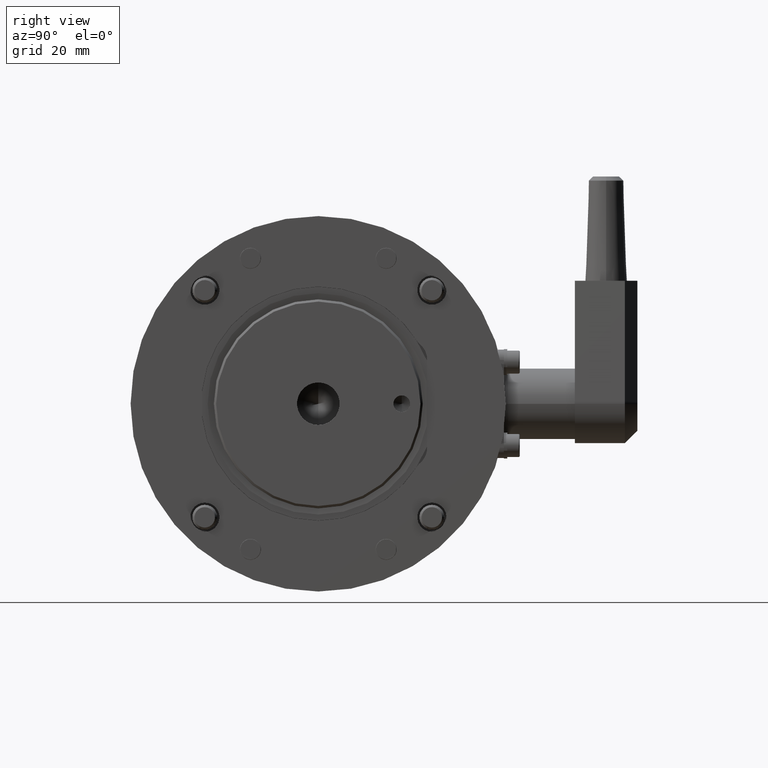
[diagram: clean part render]
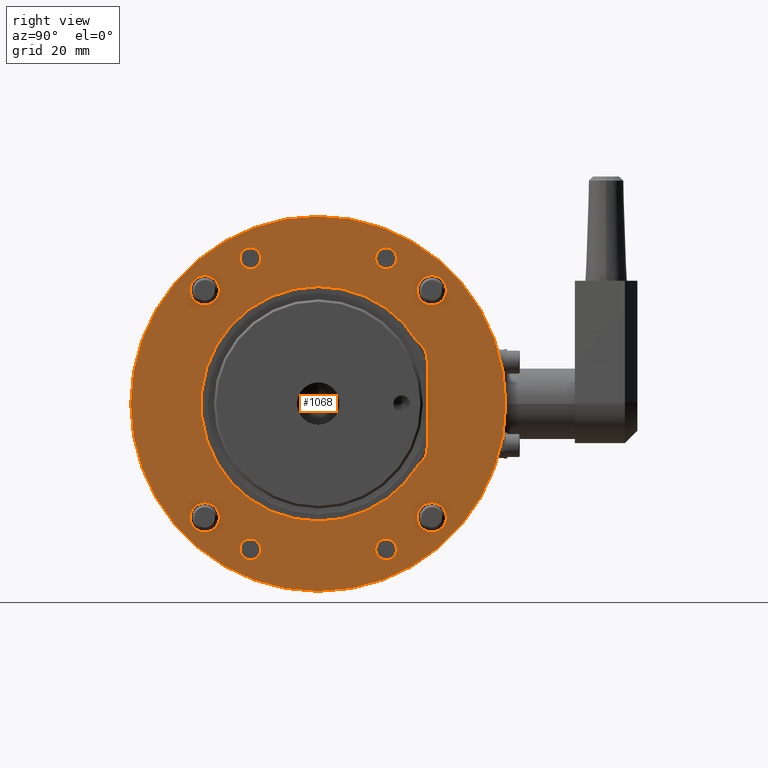
[diagram: same view with one face highlighted and labeled with its STEP entity id]
A machine part, right view. The second image highlights one B-rep face of the part: STEP entity #1068.
In plain terms, the highlighted planar face has unit normal (-1, 0, 0).
Its self-contained STEP definition (entity closure, byte-faithful):
#45 = DIRECTION ( 'NONE',  ( -0.000000000000000000, 1.000000000000000000, -0.000000000000000000 ) ) ;
#64 = FACE_BOUND ( 'NONE', #1565, .T. ) ;
#106 = EDGE_CURVE ( 'NONE', #11818, #146, #1406, .T. ) ;
#143 = CARTESIAN_POINT ( 'NONE',  ( -27.22361107568211480, 0.000000000000000000, 30.72361107568203664 ) ) ;
#146 = VERTEX_POINT ( 'NONE', #13581 ) ;
#271 = ORIENTED_EDGE ( 'NONE', *, *, #2846, .T. ) ;
#278 = VERTEX_POINT ( 'NONE', #4343 ) ;
#367 = CIRCLE ( 'NONE', #13309, 28.10000000000000497 ) ;
#409 = FACE_BOUND ( 'NONE', #9617, .T. ) ;
#425 = CARTESIAN_POINT ( 'NONE',  ( -16.27080307701695716, -5.204170427930421283E-15, 37.39284980091099442 ) ) ;
#624 = DIRECTION ( 'NONE',  ( -0.000000000000000000, -0.000000000000000000, -1.000000000000000000 ) ) ;
#702 = EDGE_CURVE ( 'NONE', #3669, #1093, #1564, .T. ) ;
#731 = FACE_BOUND ( 'NONE', #3517, .T. ) ;
#735 = DIRECTION ( 'NONE',  ( 0.000000000000000000, 0.000000000000000000, 1.000000000000000000 ) ) ;
#841 = CIRCLE ( 'NONE', #11515, 28.10000000000000497 ) ;
#954 = EDGE_CURVE ( 'NONE', #6074, #11250, #11849, .T. ) ;
#996 = DIRECTION ( 'NONE',  ( 0.000000000000000000, 0.000000000000000000, 1.000000000000000000 ) ) ;
#1007 = CARTESIAN_POINT ( 'NONE',  ( 16.27080307701697492, -5.204170427930421283E-15, 34.89284980091100152 ) ) ;
#1068 = ADVANCED_FACE ( 'NONE', ( #9550, #11689, #6072, #731, #409, #5737, #2866, #64, #10354, #12016 ), #2482, .F. ) ;
#1093 = VERTEX_POINT ( 'NONE', #10910 ) ;
#1118 = EDGE_CURVE ( 'NONE', #1093, #3669, #6057, .T. ) ;
#1131 = DIRECTION ( 'NONE',  ( 0.000000000000000000, 0.000000000000000000, 1.000000000000000000 ) ) ;
#1157 = EDGE_LOOP ( 'NONE', ( #9105, #271, #10041, #6002, #8500, #9265 ) ) ;
#1217 = EDGE_CURVE ( 'NONE', #6344, #6433, #13024, .T. ) ;
#1248 = DIRECTION ( 'NONE',  ( 0.000000000000000000, 0.000000000000000000, 1.000000000000000000 ) ) ;
#1272 = AXIS2_PLACEMENT_3D ( 'NONE', #7073, #4871, #13369 ) ;
#1295 = CARTESIAN_POINT ( 'NONE',  ( -27.22361107568204375, 0.000000000000000000, -27.22361107568211125 ) ) ;
#1406 = CIRCLE ( 'NONE', #10963, 2.499999999999988454 ) ;
#1436 = ORIENTED_EDGE ( 'NONE', *, *, #11705, .T. ) ;
#1469 = ORIENTED_EDGE ( 'NONE', *, *, #8684, .T. ) ;
#1503 = CARTESIAN_POINT ( 'NONE',  ( -16.27080307701696427, -5.204170427930421283E-15, -37.39284980091098731 ) ) ;
#1564 = CIRCLE ( 'NONE', #3754, 3.499999999999999556 ) ;
#1565 = EDGE_LOOP ( 'NONE', ( #7275, #5899 ) ) ;
#1669 = AXIS2_PLACEMENT_3D ( 'NONE', #3922, #13497, #2973 ) ;
#1720 = DIRECTION ( 'NONE',  ( 0.000000000000000000, 1.000000000000000000, 0.000000000000000000 ) ) ;
#1733 = DIRECTION ( 'NONE',  ( 0.000000000000000000, 0.000000000000000000, 1.000000000000000000 ) ) ;
#1760 = ORIENTED_EDGE ( 'NONE', *, *, #9654, .T. ) ;
#1777 = CARTESIAN_POINT ( 'NONE',  ( 26.10000000000000497, 0.000000000000000000, -10.50000000000000000 ) ) ;
#1788 = AXIS2_PLACEMENT_3D ( 'NONE', #3568, #7886, #6713 ) ;
#1791 = VERTEX_POINT ( 'NONE', #1796 ) ;
#1796 = CARTESIAN_POINT ( 'NONE',  ( 24.04563333253369706, 0.000000000000000000, 14.54020349367039344 ) ) ;
#1844 = AXIS2_PLACEMENT_3D ( 'NONE', #6094, #6050, #735 ) ;
#1909 = CARTESIAN_POINT ( 'NONE',  ( -16.27080307701696427, -5.204170427930421283E-15, -32.39284980091101573 ) ) ;
#1981 = DIRECTION ( 'NONE',  ( 0.000000000000000000, 0.000000000000000000, 1.000000000000000000 ) ) ;
#1995 = AXIS2_PLACEMENT_3D ( 'NONE', #2694, #1720, #2644 ) ;
#2420 = DIRECTION ( 'NONE',  ( 0.000000000000000000, 0.000000000000000000, 1.000000000000000000 ) ) ;
#2482 = PLANE ( 'NONE',  #1788 ) ;
#2535 = CARTESIAN_POINT ( 'NONE',  ( -27.22361107568204375, 0.000000000000000000, -27.22361107568211125 ) ) ;
#2543 = EDGE_CURVE ( 'NONE', #278, #9111, #367, .T. ) ;
#2644 = DIRECTION ( 'NONE',  ( 0.000000000000000000, 0.000000000000000000, 1.000000000000000000 ) ) ;
#2674 = CARTESIAN_POINT ( 'NONE',  ( 16.27080307701696427, -5.204170427930421283E-15, -32.39284980091102284 ) ) ;
#2694 = CARTESIAN_POINT ( 'NONE',  ( 0.000000000000000000, 0.000000000000000000, 0.000000000000000000 ) ) ;
#2802 = EDGE_CURVE ( 'NONE', #6433, #6344, #8497, .T. ) ;
#2810 = ORIENTED_EDGE ( 'NONE', *, *, #3048, .F. ) ;
#2846 = EDGE_CURVE ( 'NONE', #11930, #278, #841, .T. ) ;
#2866 = FACE_BOUND ( 'NONE', #3269, .T. ) ;
#2886 = ORIENTED_EDGE ( 'NONE', *, *, #2802, .T. ) ;
#2973 = DIRECTION ( 'NONE',  ( 0.000000000000000000, 0.000000000000000000, 1.000000000000000000 ) ) ;
#3020 = AXIS2_PLACEMENT_3D ( 'NONE', #1007, #13732, #11575 ) ;
#3048 = EDGE_CURVE ( 'NONE', #12156, #9846, #6019, .T. ) ;
#3150 = AXIS2_PLACEMENT_3D ( 'NONE', #5023, #12568, #1981 ) ;
#3230 = CARTESIAN_POINT ( 'NONE',  ( 26.10000000000000497, 0.000000000000000000, 10.50000000000000000 ) ) ;
#3247 = CARTESIAN_POINT ( 'NONE',  ( 27.22361107568212191, 0.000000000000000000, -27.22361107568203309 ) ) ;
#3269 = EDGE_LOOP ( 'NONE', ( #7442, #7791 ) ) ;
#3317 = DIRECTION ( 'NONE',  ( -0.000000000000000000, 1.000000000000000000, -0.000000000000000000 ) ) ;
#3397 = CARTESIAN_POINT ( 'NONE',  ( 0.000000000000000000, 0.000000000000000000, 0.000000000000000000 ) ) ;
#3423 = CARTESIAN_POINT ( 'NONE',  ( 27.22361107568203664, 0.000000000000000000, 27.22361107568211835 ) ) ;
#3430 = AXIS2_PLACEMENT_3D ( 'NONE', #6698, #7574, #7617 ) ;
#3515 = CARTESIAN_POINT ( 'NONE',  ( 16.27080307701696427, -5.204170427930421283E-15, -34.89284980091100863 ) ) ;
#3517 = EDGE_LOOP ( 'NONE', ( #11754, #1469 ) ) ;
#3568 = CARTESIAN_POINT ( 'NONE',  ( 0.000000000000000000, 0.000000000000000000, 0.000000000000000000 ) ) ;
#3669 = VERTEX_POINT ( 'NONE', #9097 ) ;
#3754 = AXIS2_PLACEMENT_3D ( 'NONE', #4934, #10268, #8220 ) ;
#3835 = EDGE_CURVE ( 'NONE', #9111, #1791, #11126, .T. ) ;
#3922 = CARTESIAN_POINT ( 'NONE',  ( -16.27080307701695716, -5.204170427930421283E-15, 34.89284980091100863 ) ) ;
#4280 = CIRCLE ( 'NONE', #1844, 3.499999999999999556 ) ;
#4343 = CARTESIAN_POINT ( 'NONE',  ( 0.000000000000000000, 0.000000000000000000, -28.10000000000000497 ) ) ;
#4373 = DIRECTION ( 'NONE',  ( 0.000000000000000000, 0.000000000000000000, 1.000000000000000000 ) ) ;
#4419 = AXIS2_PLACEMENT_3D ( 'NONE', #10672, #11811, #9734 ) ;
#4501 = CARTESIAN_POINT ( 'NONE',  ( -27.22361107568204375, 0.000000000000000000, -23.72361107568211125 ) ) ;
#4514 = DIRECTION ( 'NONE',  ( 0.000000000000000000, 0.000000000000000000, 1.000000000000000000 ) ) ;
#4533 = CARTESIAN_POINT ( 'NONE',  ( 24.04563333253369706, 0.000000000000000000, -14.54020349367039344 ) ) ;
#4548 = VERTEX_POINT ( 'NONE', #10757 ) ;
#4593 = DIRECTION ( 'NONE',  ( -0.000000000000000000, 1.000000000000000000, -0.000000000000000000 ) ) ;
#4692 = CIRCLE ( 'NONE', #4887, 2.499999999999988454 ) ;
#4871 = DIRECTION ( 'NONE',  ( -0.000000000000000000, 1.000000000000000000, -0.000000000000000000 ) ) ;
#4887 = AXIS2_PLACEMENT_3D ( 'NONE', #3515, #7881, #8930 ) ;
#4930 = EDGE_CURVE ( 'NONE', #12787, #5959, #6638, .T. ) ;
#4934 = CARTESIAN_POINT ( 'NONE',  ( 27.22361107568203664, 0.000000000000000000, 27.22361107568211835 ) ) ;
#5001 = ORIENTED_EDGE ( 'NONE', *, *, #4930, .T. ) ;
#5008 = AXIS2_PLACEMENT_3D ( 'NONE', #3397, #13027, #7739 ) ;
#5023 = CARTESIAN_POINT ( 'NONE',  ( 0.000000000000000000, 0.000000000000000000, 0.000000000000000000 ) ) ;
#5087 = VERTEX_POINT ( 'NONE', #5791 ) ;
#5203 = CARTESIAN_POINT ( 'NONE',  ( 16.27080307701696427, -5.204170427930421283E-15, -34.89284980091100863 ) ) ;
#5395 = CARTESIAN_POINT ( 'NONE',  ( -27.22361107568204375, 0.000000000000000000, -30.72361107568211125 ) ) ;
#5625 = CARTESIAN_POINT ( 'NONE',  ( -27.22361107568211480, 0.000000000000000000, 27.22361107568204019 ) ) ;
#5681 = VERTEX_POINT ( 'NONE', #425 ) ;
#5737 = FACE_BOUND ( 'NONE', #8908, .T. ) ;
#5779 = DIRECTION ( 'NONE',  ( 0.000000000000000000, 0.000000000000000000, 1.000000000000000000 ) ) ;
#5791 = CARTESIAN_POINT ( 'NONE',  ( -16.27080307701695716, -5.204170427930421283E-15, 32.39284980091102284 ) ) ;
#5899 = ORIENTED_EDGE ( 'NONE', *, *, #702, .T. ) ;
#5959 = VERTEX_POINT ( 'NONE', #6236 ) ;
#6001 = EDGE_CURVE ( 'NONE', #7193, #4548, #4280, .T. ) ;
#6002 = ORIENTED_EDGE ( 'NONE', *, *, #3835, .T. ) ;
#6019 = CIRCLE ( 'NONE', #1995, 44.95000000000000284 ) ;
#6038 = ORIENTED_EDGE ( 'NONE', *, *, #8319, .T. ) ;
#6050 = DIRECTION ( 'NONE',  ( -0.000000000000000000, 1.000000000000000000, -0.000000000000000000 ) ) ;
#6054 = CARTESIAN_POINT ( 'NONE',  ( 27.22361107568212191, 0.000000000000000000, -23.72361107568203309 ) ) ;
#6057 = CIRCLE ( 'NONE', #6285, 3.499999999999999556 ) ;
#6072 = FACE_BOUND ( 'NONE', #9775, .T. ) ;
#6074 = VERTEX_POINT ( 'NONE', #5395 ) ;
#6094 = CARTESIAN_POINT ( 'NONE',  ( -27.22361107568211480, 0.000000000000000000, 27.22361107568204019 ) ) ;
#6145 = EDGE_CURVE ( 'NONE', #4548, #7193, #9081, .T. ) ;
#6196 = AXIS2_PLACEMENT_3D ( 'NONE', #5203, #9510, #6325 ) ;
#6234 = ORIENTED_EDGE ( 'NONE', *, *, #13163, .T. ) ;
#6236 = CARTESIAN_POINT ( 'NONE',  ( 27.22361107568212191, 0.000000000000000000, -30.72361107568203309 ) ) ;
#6285 = AXIS2_PLACEMENT_3D ( 'NONE', #3423, #10866, #4514 ) ;
#6304 = CIRCLE ( 'NONE', #12292, 2.499999999999988454 ) ;
#6325 = DIRECTION ( 'NONE',  ( 0.000000000000000000, 0.000000000000000000, 1.000000000000000000 ) ) ;
#6344 = VERTEX_POINT ( 'NONE', #1503 ) ;
#6433 = VERTEX_POINT ( 'NONE', #1909 ) ;
#6437 = EDGE_CURVE ( 'NONE', #5681, #5087, #10401, .T. ) ;
#6565 = CARTESIAN_POINT ( 'NONE',  ( 21.09999999999999432, 0.000000000000000000, -10.50000000000000000 ) ) ;
#6638 = CIRCLE ( 'NONE', #8072, 3.499999999999999556 ) ;
#6698 = CARTESIAN_POINT ( 'NONE',  ( 21.09999999999999432, 0.000000000000000000, 10.50000000000000000 ) ) ;
#6713 = DIRECTION ( 'NONE',  ( 0.000000000000000000, -0.000000000000000000, 1.000000000000000000 ) ) ;
#6843 = CARTESIAN_POINT ( 'NONE',  ( -16.27080307701695716, -5.204170427930421283E-15, 34.89284980091100863 ) ) ;
#6950 = EDGE_CURVE ( 'NONE', #10152, #10507, #7768, .T. ) ;
#7073 = CARTESIAN_POINT ( 'NONE',  ( -16.27080307701696427, -5.204170427930421283E-15, -34.89284980091100152 ) ) ;
#7116 = DIRECTION ( 'NONE',  ( 0.000000000000000000, 1.000000000000000000, 0.000000000000000000 ) ) ;
#7146 = CARTESIAN_POINT ( 'NONE',  ( 26.10000000000000497, 0.000000000000000000, -10.50000000000000000 ) ) ;
#7193 = VERTEX_POINT ( 'NONE', #143 ) ;
#7196 = CARTESIAN_POINT ( 'NONE',  ( 16.27080307701697492, -5.204170427930421283E-15, 34.89284980091100152 ) ) ;
#7275 = ORIENTED_EDGE ( 'NONE', *, *, #1118, .T. ) ;
#7442 = ORIENTED_EDGE ( 'NONE', *, *, #6001, .T. ) ;
#7538 = EDGE_LOOP ( 'NONE', ( #2810, #13575 ) ) ;
#7574 = DIRECTION ( 'NONE',  ( 0.000000000000000000, 1.000000000000000000, -0.000000000000000000 ) ) ;
#7617 = DIRECTION ( 'NONE',  ( 0.000000000000000000, 0.000000000000000000, -1.000000000000000000 ) ) ;
#7699 = CARTESIAN_POINT ( 'NONE',  ( 0.000000000000000000, 0.000000000000000000, 0.000000000000000000 ) ) ;
#7715 = VERTEX_POINT ( 'NONE', #2674 ) ;
#7739 = DIRECTION ( 'NONE',  ( 0.000000000000000000, 0.000000000000000000, 1.000000000000000000 ) ) ;
#7747 = CIRCLE ( 'NONE', #12133, 5.000000000000007105 ) ;
#7768 = LINE ( 'NONE', #7146, #9923 ) ;
#7774 = AXIS2_PLACEMENT_3D ( 'NONE', #2535, #9998, #5779 ) ;
#7791 = ORIENTED_EDGE ( 'NONE', *, *, #6145, .T. ) ;
#7822 = CARTESIAN_POINT ( 'NONE',  ( 16.27080307701697492, -5.204170427930421283E-15, 37.39284980091098731 ) ) ;
#7829 = DIRECTION ( 'NONE',  ( 0.000000000000000000, 1.000000000000000000, 0.000000000000000000 ) ) ;
#7881 = DIRECTION ( 'NONE',  ( -0.000000000000000000, 1.000000000000000000, -0.000000000000000000 ) ) ;
#7886 = DIRECTION ( 'NONE',  ( 0.000000000000000000, 1.000000000000000000, 0.000000000000000000 ) ) ;
#7896 = CIRCLE ( 'NONE', #3430, 5.000000000000007105 ) ;
#8072 = AXIS2_PLACEMENT_3D ( 'NONE', #8699, #9967, #9776 ) ;
#8080 = ORIENTED_EDGE ( 'NONE', *, *, #6437, .T. ) ;
#8167 = ORIENTED_EDGE ( 'NONE', *, *, #10520, .T. ) ;
#8220 = DIRECTION ( 'NONE',  ( 0.000000000000000000, 0.000000000000000000, 1.000000000000000000 ) ) ;
#8319 = EDGE_CURVE ( 'NONE', #5087, #5681, #6304, .T. ) ;
#8497 = CIRCLE ( 'NONE', #4419, 2.499999999999988454 ) ;
#8500 = ORIENTED_EDGE ( 'NONE', *, *, #11163, .T. ) ;
#8547 = AXIS2_PLACEMENT_3D ( 'NONE', #5625, #3317, #8755 ) ;
#8586 = DIRECTION ( 'NONE',  ( 0.000000000000000000, 1.000000000000000000, 0.000000000000000000 ) ) ;
#8652 = CARTESIAN_POINT ( 'NONE',  ( 16.27080307701696427, -5.204170427930421283E-15, -37.39284980091099442 ) ) ;
#8673 = EDGE_LOOP ( 'NONE', ( #2886, #10667 ) ) ;
#8684 = EDGE_CURVE ( 'NONE', #146, #11818, #13757, .T. ) ;
#8699 = CARTESIAN_POINT ( 'NONE',  ( 27.22361107568212191, 0.000000000000000000, -27.22361107568203309 ) ) ;
#8755 = DIRECTION ( 'NONE',  ( 0.000000000000000000, 0.000000000000000000, 1.000000000000000000 ) ) ;
#8804 = DIRECTION ( 'NONE',  ( 0.000000000000000000, 0.000000000000000000, 1.000000000000000000 ) ) ;
#8898 = EDGE_CURVE ( 'NONE', #9846, #12156, #11247, .T. ) ;
#8908 = EDGE_LOOP ( 'NONE', ( #5001, #1436 ) ) ;
#8930 = DIRECTION ( 'NONE',  ( 0.000000000000000000, 0.000000000000000000, 1.000000000000000000 ) ) ;
#9081 = CIRCLE ( 'NONE', #8547, 3.499999999999999556 ) ;
#9097 = CARTESIAN_POINT ( 'NONE',  ( 27.22361107568203664, 0.000000000000000000, 23.72361107568211835 ) ) ;
#9105 = ORIENTED_EDGE ( 'NONE', *, *, #10062, .T. ) ;
#9111 = VERTEX_POINT ( 'NONE', #11347 ) ;
#9137 = CARTESIAN_POINT ( 'NONE',  ( 5.504787362167353271E-15, 0.000000000000000000, 44.95000000000000284 ) ) ;
#9242 = CARTESIAN_POINT ( 'NONE',  ( 0.000000000000000000, 0.000000000000000000, -44.95000000000000284 ) ) ;
#9265 = ORIENTED_EDGE ( 'NONE', *, *, #6950, .T. ) ;
#9352 = DIRECTION ( 'NONE',  ( -0.000000000000000000, 1.000000000000000000, -0.000000000000000000 ) ) ;
#9510 = DIRECTION ( 'NONE',  ( -0.000000000000000000, 1.000000000000000000, -0.000000000000000000 ) ) ;
#9550 = FACE_BOUND ( 'NONE', #8673, .T. ) ;
#9579 = CIRCLE ( 'NONE', #7774, 3.499999999999999556 ) ;
#9617 = EDGE_LOOP ( 'NONE', ( #1760, #9947 ) ) ;
#9654 = EDGE_CURVE ( 'NONE', #11250, #6074, #9579, .T. ) ;
#9724 = CIRCLE ( 'NONE', #6196, 2.499999999999988454 ) ;
#9734 = DIRECTION ( 'NONE',  ( 0.000000000000000000, 0.000000000000000000, 1.000000000000000000 ) ) ;
#9775 = EDGE_LOOP ( 'NONE', ( #8080, #6038 ) ) ;
#9776 = DIRECTION ( 'NONE',  ( 0.000000000000000000, 0.000000000000000000, 1.000000000000000000 ) ) ;
#9846 = VERTEX_POINT ( 'NONE', #9137 ) ;
#9923 = VECTOR ( 'NONE', #624, 1000.000000000000000 ) ;
#9947 = ORIENTED_EDGE ( 'NONE', *, *, #954, .T. ) ;
#9967 = DIRECTION ( 'NONE',  ( -0.000000000000000000, 1.000000000000000000, -0.000000000000000000 ) ) ;
#9998 = DIRECTION ( 'NONE',  ( -0.000000000000000000, 1.000000000000000000, -0.000000000000000000 ) ) ;
#10041 = ORIENTED_EDGE ( 'NONE', *, *, #2543, .T. ) ;
#10062 = EDGE_CURVE ( 'NONE', #10507, #11930, #7747, .T. ) ;
#10152 = VERTEX_POINT ( 'NONE', #3230 ) ;
#10168 = AXIS2_PLACEMENT_3D ( 'NONE', #1295, #45, #1248 ) ;
#10268 = DIRECTION ( 'NONE',  ( -0.000000000000000000, 1.000000000000000000, -0.000000000000000000 ) ) ;
#10354 = FACE_OUTER_BOUND ( 'NONE', #7538, .T. ) ;
#10401 = CIRCLE ( 'NONE', #1669, 2.499999999999988454 ) ;
#10507 = VERTEX_POINT ( 'NONE', #1777 ) ;
#10520 = EDGE_CURVE ( 'NONE', #11816, #7715, #9724, .T. ) ;
#10667 = ORIENTED_EDGE ( 'NONE', *, *, #1217, .T. ) ;
#10672 = CARTESIAN_POINT ( 'NONE',  ( -16.27080307701696427, -5.204170427930421283E-15, -34.89284980091100152 ) ) ;
#10706 = DIRECTION ( 'NONE',  ( -0.000000000000000000, 1.000000000000000000, -0.000000000000000000 ) ) ;
#10757 = CARTESIAN_POINT ( 'NONE',  ( -27.22361107568211480, 0.000000000000000000, 23.72361107568204019 ) ) ;
#10866 = DIRECTION ( 'NONE',  ( -0.000000000000000000, 1.000000000000000000, -0.000000000000000000 ) ) ;
#10910 = CARTESIAN_POINT ( 'NONE',  ( 27.22361107568203664, 0.000000000000000000, 30.72361107568211835 ) ) ;
#10963 = AXIS2_PLACEMENT_3D ( 'NONE', #7196, #9352, #996 ) ;
#11126 = CIRCLE ( 'NONE', #3150, 28.10000000000000497 ) ;
#11163 = EDGE_CURVE ( 'NONE', #1791, #10152, #7896, .T. ) ;
#11247 = CIRCLE ( 'NONE', #5008, 44.95000000000000284 ) ;
#11250 = VERTEX_POINT ( 'NONE', #4501 ) ;
#11347 = CARTESIAN_POINT ( 'NONE',  ( 3.441257505604062633E-15, 0.000000000000000000, 28.10000000000000497 ) ) ;
#11515 = AXIS2_PLACEMENT_3D ( 'NONE', #7699, #7829, #2420 ) ;
#11575 = DIRECTION ( 'NONE',  ( 0.000000000000000000, 0.000000000000000000, 1.000000000000000000 ) ) ;
#11689 = FACE_BOUND ( 'NONE', #12873, .T. ) ;
#11705 = EDGE_CURVE ( 'NONE', #5959, #12787, #11856, .T. ) ;
#11754 = ORIENTED_EDGE ( 'NONE', *, *, #106, .T. ) ;
#11811 = DIRECTION ( 'NONE',  ( -0.000000000000000000, 1.000000000000000000, -0.000000000000000000 ) ) ;
#11816 = VERTEX_POINT ( 'NONE', #8652 ) ;
#11818 = VERTEX_POINT ( 'NONE', #7822 ) ;
#11849 = CIRCLE ( 'NONE', #10168, 3.499999999999999556 ) ;
#11856 = CIRCLE ( 'NONE', #12075, 3.499999999999999556 ) ;
#11930 = VERTEX_POINT ( 'NONE', #4533 ) ;
#12016 = FACE_BOUND ( 'NONE', #1157, .T. ) ;
#12075 = AXIS2_PLACEMENT_3D ( 'NONE', #3247, #10706, #1131 ) ;
#12133 = AXIS2_PLACEMENT_3D ( 'NONE', #6565, #8586, #4373 ) ;
#12156 = VERTEX_POINT ( 'NONE', #9242 ) ;
#12292 = AXIS2_PLACEMENT_3D ( 'NONE', #6843, #4593, #8804 ) ;
#12369 = CARTESIAN_POINT ( 'NONE',  ( 0.000000000000000000, 0.000000000000000000, 0.000000000000000000 ) ) ;
#12568 = DIRECTION ( 'NONE',  ( 0.000000000000000000, 1.000000000000000000, 0.000000000000000000 ) ) ;
#12787 = VERTEX_POINT ( 'NONE', #6054 ) ;
#12873 = EDGE_LOOP ( 'NONE', ( #6234, #8167 ) ) ;
#13024 = CIRCLE ( 'NONE', #1272, 2.499999999999988454 ) ;
#13027 = DIRECTION ( 'NONE',  ( 0.000000000000000000, 1.000000000000000000, 0.000000000000000000 ) ) ;
#13163 = EDGE_CURVE ( 'NONE', #7715, #11816, #4692, .T. ) ;
#13309 = AXIS2_PLACEMENT_3D ( 'NONE', #12369, #7116, #1733 ) ;
#13369 = DIRECTION ( 'NONE',  ( 0.000000000000000000, 0.000000000000000000, 1.000000000000000000 ) ) ;
#13497 = DIRECTION ( 'NONE',  ( -0.000000000000000000, 1.000000000000000000, -0.000000000000000000 ) ) ;
#13575 = ORIENTED_EDGE ( 'NONE', *, *, #8898, .F. ) ;
#13581 = CARTESIAN_POINT ( 'NONE',  ( 16.27080307701697492, -5.204170427930421283E-15, 32.39284980091101573 ) ) ;
#13732 = DIRECTION ( 'NONE',  ( -0.000000000000000000, 1.000000000000000000, -0.000000000000000000 ) ) ;
#13757 = CIRCLE ( 'NONE', #3020, 2.499999999999988454 ) ;